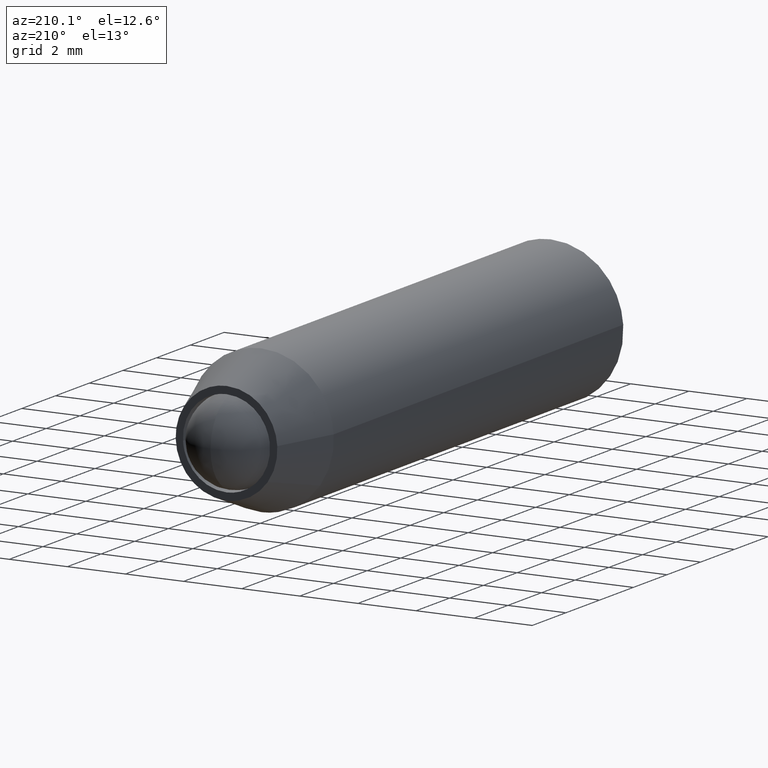
[diagram: clean part render]
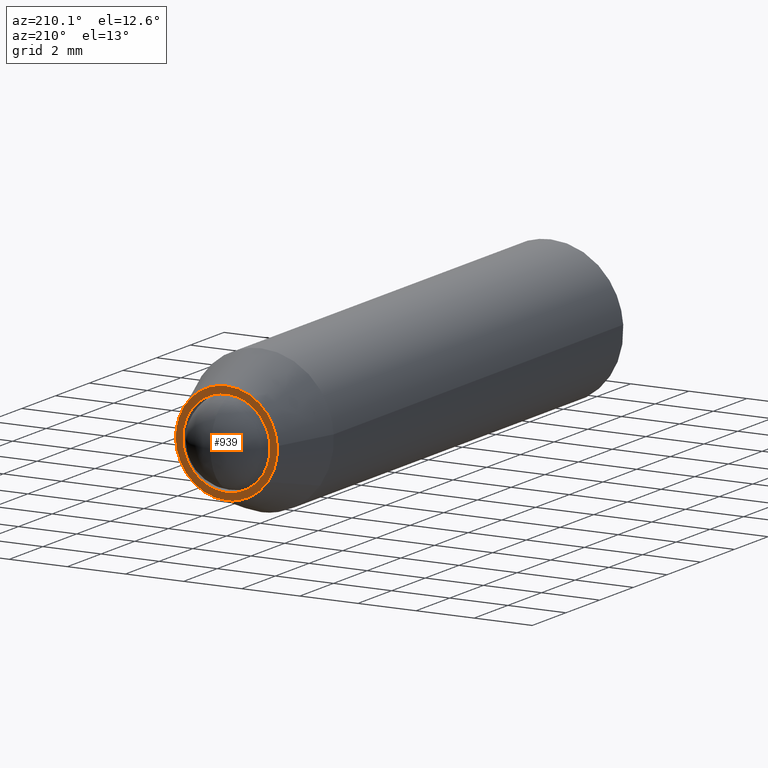
[diagram: same view with one face highlighted and labeled with its STEP entity id]
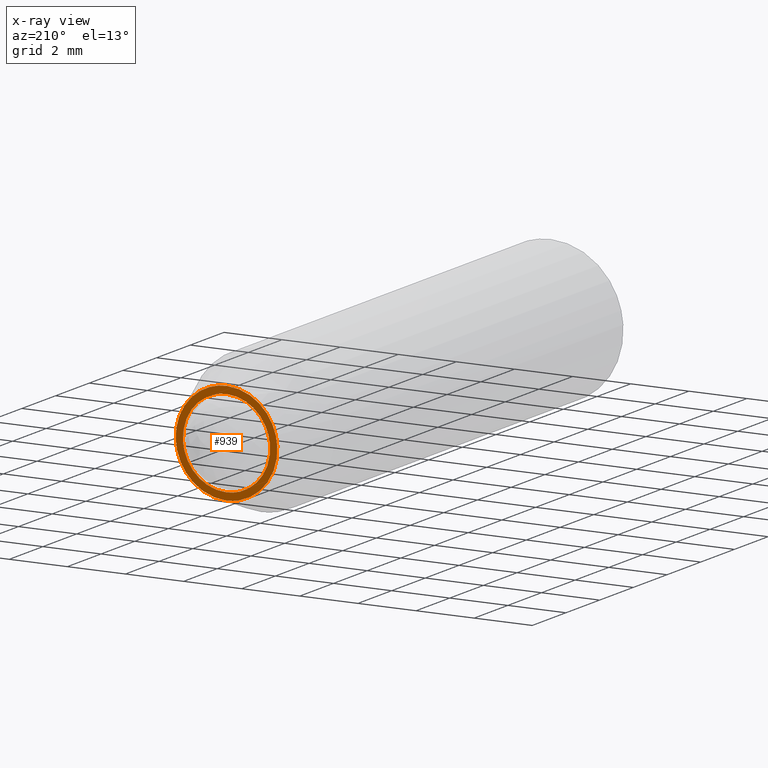
[diagram: x-ray of the same camera — body ghosted, the highlighted face saturated]
A machine part, auxiliary view. The second image highlights one B-rep face of the part: STEP entity #939.
The next image is the same camera in x-ray: the body ghosted, the highlighted face saturated — about 0% of this face is hidden behind the body in this view.
In plain terms, the highlighted face is a freeform B-spline surface patch.
Its self-contained STEP definition (entity closure, byte-faithful):
#100=CARTESIAN_POINT('',(1.497202197631061,1.040834E-016,-0.091572809330721));
#101=VERTEX_POINT('',#100);
#107=CARTESIAN_POINT('',(0.0,0.0,-1.500000000000000));
#108=VERTEX_POINT('',#107);
#109=CARTESIAN_POINT('',(0.0,0.0,-1.500000000000000));
#110=CARTESIAN_POINT('',(1.411059100304847,0.0,-1.500000000000000));
#111=CARTESIAN_POINT('',(1.497202197631061,1.040834E-016,-0.091572809330721));
#119=(BOUNDED_CURVE()B_SPLINE_CURVE(2,(#109,#110,#111),.UNSPECIFIED.,.F.,.U.)B_SPLINE_CURVE_WITH_KNOTS((3,3),(0.500000000000000,0.739332962235415),.UNSPECIFIED.)CURVE()GEOMETRIC_REPRESENTATION_ITEM()RATIONAL_B_SPLINE_CURVE((1.0,0.719603993290844,0.976072041659156))REPRESENTATION_ITEM(''));
#120=EDGE_CURVE('',#108,#101,#119,.T.);
#122=CARTESIAN_POINT('',(-1.489514289544436,1.064786E-016,0.177051351994086));
#123=VERTEX_POINT('',#122);
#124=CARTESIAN_POINT('',(-1.489514289544436,1.064786E-016,0.177051351994086));
#125=CARTESIAN_POINT('',(-1.500000000000000,0.0,0.088836179486908));
#126=CARTESIAN_POINT('',(-1.500000000000000,0.0,0.0));
#127=CARTESIAN_POINT('',(-1.500000000000000,0.0,-1.500000000000000));
#128=CARTESIAN_POINT('',(0.0,0.0,-1.500000000000000));
#136=(BOUNDED_CURVE()B_SPLINE_CURVE(2,(#124,#125,#126,#127,#128),.UNSPECIFIED.,.F.,.U.)B_SPLINE_CURVE_WITH_KNOTS((3,2,3),(0.229562473513614,0.250000000000000,0.500000000000000),.UNSPECIFIED.)CURVE()GEOMETRIC_REPRESENTATION_ITEM()RATIONAL_B_SPLINE_CURVE((0.956026754183906,0.976055948331269,1.0,0.707106781186548,1.0))REPRESENTATION_ITEM(''));
#137=EDGE_CURVE('',#123,#108,#136,.T.);
#181=CARTESIAN_POINT('',(0.0,0.0,1.500000000000000));
#182=VERTEX_POINT('',#181);
#183=CARTESIAN_POINT('',(0.0,0.0,1.500000000000000));
#184=CARTESIAN_POINT('',(-1.332261788910932,0.0,1.500000000000000));
#185=CARTESIAN_POINT('',(-1.489514289544436,1.064786E-016,0.177051351994086));
#193=(BOUNDED_CURVE()B_SPLINE_CURVE(2,(#183,#184,#185),.UNSPECIFIED.,.F.,.U.)B_SPLINE_CURVE_WITH_KNOTS((3,3),(0.0,0.229562473513614),.UNSPECIFIED.)CURVE()GEOMETRIC_REPRESENTATION_ITEM()RATIONAL_B_SPLINE_CURVE((1.0,0.731050832855279,0.956026754183906))REPRESENTATION_ITEM(''));
#194=EDGE_CURVE('',#182,#123,#193,.T.);
#196=CARTESIAN_POINT('',(1.497202197631061,1.040834E-016,-0.091572809330721));
#197=CARTESIAN_POINT('',(1.500000000000000,0.0,-0.045829144976399));
#198=CARTESIAN_POINT('',(1.500000000000000,0.0,0.0));
#199=CARTESIAN_POINT('',(1.500000000000000,0.0,1.500000000000000));
#200=CARTESIAN_POINT('',(0.0,0.0,1.500000000000000));
#208=(BOUNDED_CURVE()B_SPLINE_CURVE(2,(#196,#197,#198,#199,#200),.UNSPECIFIED.,.F.,.U.)B_SPLINE_CURVE_WITH_KNOTS((3,2,3),(0.739332962235414,0.750000000000000,1.0),.UNSPECIFIED.)CURVE()GEOMETRIC_REPRESENTATION_ITEM()RATIONAL_B_SPLINE_CURVE((0.976072041659155,0.987502787895703,1.0,0.707106781186548,1.0))REPRESENTATION_ITEM(''));
#209=EDGE_CURVE('',#101,#182,#208,.T.);
#256=CARTESIAN_POINT('',(-1.419203752698367,-7.804877E-014,-1.023894871716317));
#257=VERTEX_POINT('',#256);
#258=CARTESIAN_POINT('',(0.0,0.0,-1.750000000000000));
#259=VERTEX_POINT('',#258);
#260=CARTESIAN_POINT('',(-1.419203752698368,-7.804877E-014,-1.023894871716317));
#261=CARTESIAN_POINT('',(-0.895349925674755,0.0,-1.750000000000000));
#262=CARTESIAN_POINT('',(0.0,0.0,-1.750000000000000));
#270=(BOUNDED_CURVE()B_SPLINE_CURVE(2,(#260,#261,#262),.UNSPECIFIED.,.F.,.U.)B_SPLINE_CURVE_WITH_KNOTS((3,3),(0.850743050382130,1.0),.UNSPECIFIED.)CURVE()GEOMETRIC_REPRESENTATION_ITEM()RATIONAL_B_SPLINE_CURVE((0.859068214727285,0.825134606384579,1.0))REPRESENTATION_ITEM(''));
#271=EDGE_CURVE('',#257,#259,#270,.T.);
#273=CARTESIAN_POINT('',(0.0,0.0,1.750000000000000));
#274=VERTEX_POINT('',#273);
#275=CARTESIAN_POINT('',(0.0,0.0,-1.750000000000000));
#276=CARTESIAN_POINT('',(1.750000000000000,0.0,-1.750000000000000));
#277=CARTESIAN_POINT('',(1.750000000000000,0.0,-5.143347E-016));
#278=CARTESIAN_POINT('',(1.750000000000000,0.0,1.750000000000000));
#279=CARTESIAN_POINT('',(0.0,0.0,1.750000000000000));
#287=(BOUNDED_CURVE()B_SPLINE_CURVE(2,(#275,#276,#277,#278,#279),.UNSPECIFIED.,.F.,.U.)B_SPLINE_CURVE_WITH_KNOTS((3,2,3),(0.0,0.250000000000000,0.500000000000000),.UNSPECIFIED.)CURVE()GEOMETRIC_REPRESENTATION_ITEM()RATIONAL_B_SPLINE_CURVE((1.0,0.707106781186547,1.0,0.707106781186547,1.0))REPRESENTATION_ITEM(''));
#288=EDGE_CURVE('',#259,#274,#287,.T.);
#290=CARTESIAN_POINT('',(-1.746735834039291,0.000000216714722,0.106834685430423));
#291=VERTEX_POINT('',#290);
#292=CARTESIAN_POINT('',(0.0,0.0,1.750000000000000));
#293=CARTESIAN_POINT('',(-1.646236096638474,0.0,1.750000000000000));
#294=CARTESIAN_POINT('',(-1.746735834039291,0.000000216714722,0.106834685430423));
#302=(BOUNDED_CURVE()B_SPLINE_CURVE(2,(#292,#293,#294),.UNSPECIFIED.,.F.,.U.)B_SPLINE_CURVE_WITH_KNOTS((3,3),(0.500000000000000,0.739333012411624),.UNSPECIFIED.)CURVE()GEOMETRIC_REPRESENTATION_ITEM()RATIONAL_B_SPLINE_CURVE((1.0,0.719603934505757,0.976072149196349))REPRESENTATION_ITEM(''));
#303=EDGE_CURVE('',#274,#291,#302,.T.);
#400=CARTESIAN_POINT('',(-1.746735834039291,0.000000216714722,0.106834685430423));
#401=CARTESIAN_POINT('',(-1.750000000000000,0.0,0.053467081120302));
#402=CARTESIAN_POINT('',(-1.750000000000000,0.0,-5.143347E-016));
#403=CARTESIAN_POINT('',(-1.750000000000001,0.0,-0.565383662687904));
#404=CARTESIAN_POINT('',(-1.419203752698367,-7.804877E-014,-1.023894871716317));
#412=(BOUNDED_CURVE()B_SPLINE_CURVE(2,(#400,#401,#402,#403,#404),.UNSPECIFIED.,.F.,.U.)B_SPLINE_CURVE_WITH_KNOTS((3,2,3),(0.739333012411624,0.750000000000000,0.850743050382130),.UNSPECIFIED.)CURVE()GEOMETRIC_REPRESENTATION_ITEM()RATIONAL_B_SPLINE_CURVE((0.976072149196349,0.987502846680790,1.0,0.881972174801969,0.859068214727285))REPRESENTATION_ITEM(''));
#413=EDGE_CURVE('',#291,#257,#412,.T.);
#922=CARTESIAN_POINT('',(-1.924773180099392,0.0,-1.924824993216322));
#923=CARTESIAN_POINT('',(-1.924773180099392,0.0,1.924825087093636));
#924=CARTESIAN_POINT('',(1.924822622152233,0.0,-1.924824993216322));
#925=CARTESIAN_POINT('',(1.924822622152233,0.0,1.924825087093636));
#926=B_SPLINE_SURFACE_WITH_KNOTS('',1,1,((#922,#924),(#923,#925)),.UNSPECIFIED.,.F.,.F.,.U.,(2,2),(2,2),(0.0,3.849650080309957),(0.0,3.849595802251625),.UNSPECIFIED.);
#927=ORIENTED_EDGE('',*,*,#271,.F.);
#928=ORIENTED_EDGE('',*,*,#413,.F.);
#929=ORIENTED_EDGE('',*,*,#303,.F.);
#930=ORIENTED_EDGE('',*,*,#288,.F.);
#931=EDGE_LOOP('',(#927,#928,#929,#930));
#932=FACE_OUTER_BOUND('',#931,.T.);
#933=ORIENTED_EDGE('',*,*,#120,.T.);
#934=ORIENTED_EDGE('',*,*,#209,.T.);
#935=ORIENTED_EDGE('',*,*,#194,.T.);
#936=ORIENTED_EDGE('',*,*,#137,.T.);
#937=EDGE_LOOP('',(#933,#934,#935,#936));
#938=FACE_BOUND('',#937,.T.);
#939=ADVANCED_FACE('',(#932,#938),#926,.T.);